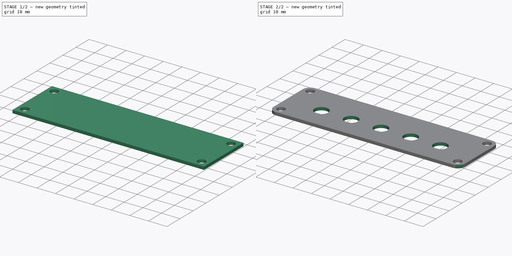
[diagram: build sequence overview — one tinted view per stage of 2, left to right]
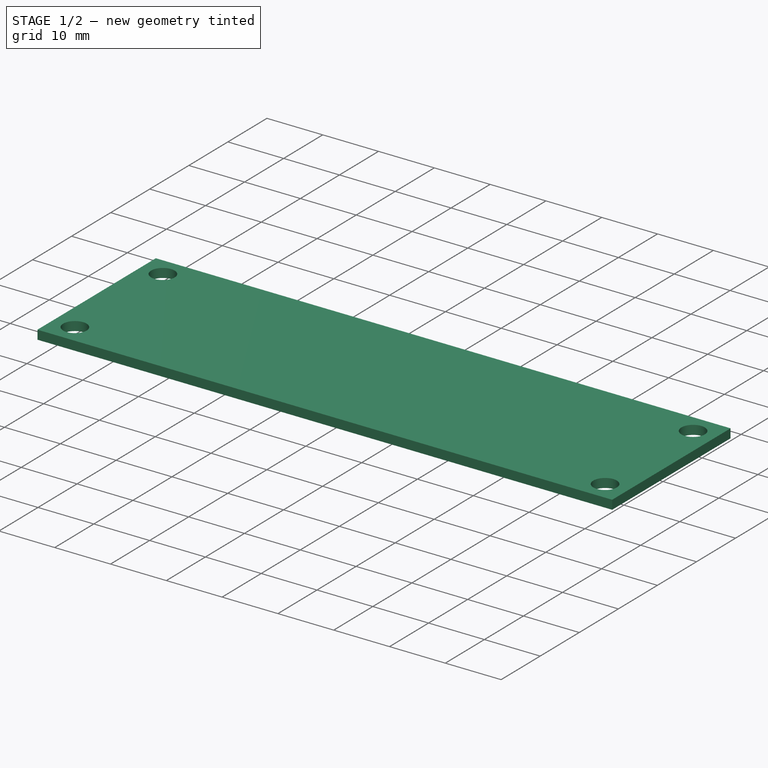
[diagram: stage 1 of 2 — iso view after this stage's code; geometry added in this stage tinted green]
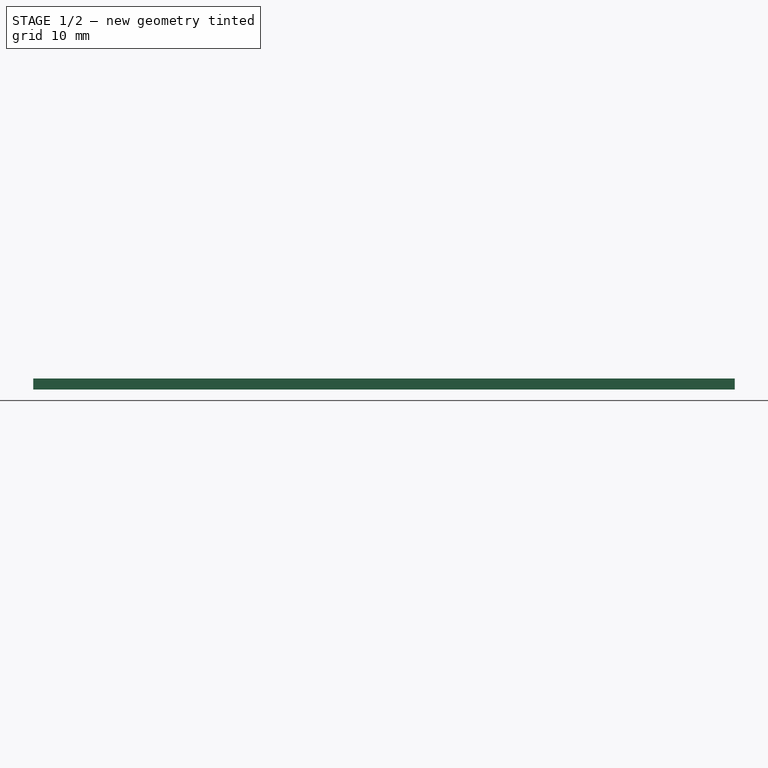
[diagram: stage 1 of 2 — front view after this stage's code; geometry added in this stage tinted green]
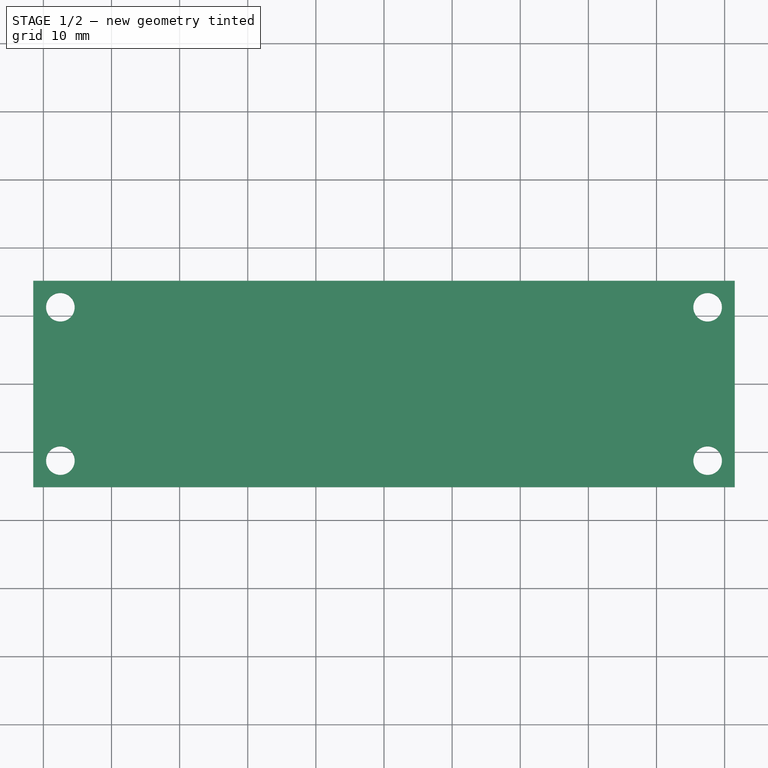
[diagram: stage 1 of 2 — top view after this stage's code; geometry added in this stage tinted green]
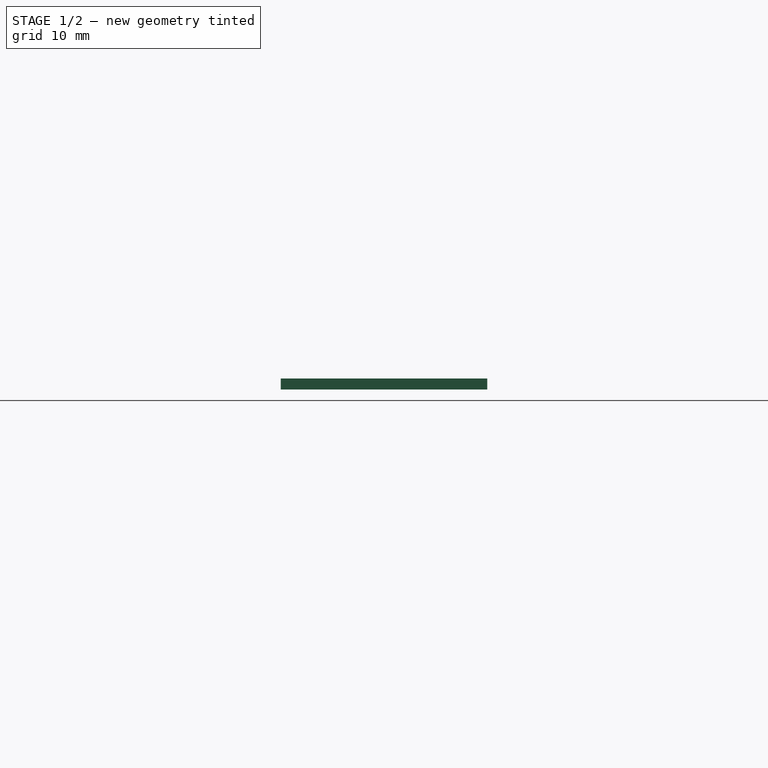
[diagram: stage 1 of 2 — right view after this stage's code; geometry added in this stage tinted green]
FCSTD DOCUMENT  (FreeCAD 0.16R4926 (Git))
Label: end_plate_front
License: All rights reserved
LicenseURL: http://en.wikipedia.org/wiki/All_rights_reserved
objects: Sketcher::SketchObject×3, PartDesign::Pocket×2, PartDesign::Pad×1, PartDesign::Fillet×1
note: 10 computed .brp shape members not serialized (recipe doc carries the construction recipe); baked Part::Feature solids carry a one-line shape summary decoded from their .brp

FEATURE [Sketcher::SketchObject] Sketch
  sketch-geometry (4):
    g0: LineSegment StartX=-51.5 StartY=15.15 StartZ=0 EndX=51.5 EndY=15.15 EndZ=0
    g1: LineSegment StartX=51.5 StartY=15.15 StartZ=0 EndX=51.5 EndY=-15.15 EndZ=0
    g2: LineSegment StartX=51.5 StartY=-15.15 StartZ=0 EndX=-51.5 EndY=-15.15 EndZ=0
    g3: LineSegment StartX=-51.5 StartY=-15.15 StartZ=0 EndX=-51.5 EndY=15.15 EndZ=0
  constraints (12):
    c: Coincident(g0,g1)
    c: Coincident(g1,g2)
    c: Coincident(g2,g3)
    c: Coincident(g3,g0)
    c: Horizontal(g0)
    c: Horizontal(g2)
    c: Vertical(g1)
    c: Vertical(g3)
    c: Symmetric(g1,g0,g-1)
    c: Symmetric(g0,g0,g-2)
    c: DistanceX(g2,g1) = 103
    c: DistanceY(g0,g2) = -30.3
FEATURE [PartDesign::Pad] Pad
  Length = 1.62
  Length2 = 100
  Sketch = -> Sketch
  Type = 0
FEATURE [Sketcher::SketchObject] Sketch001
  Placement = pos=(0,0,1.62) rot=(0,0,1;0rad)
  Support = -> Pad [Face6]
  sketch-geometry (4):
    g0: Circle CenterX=-47.51 CenterY=11.26 CenterZ=0 NormalX=0 NormalY=0 NormalZ=1 Radius=2.1
    g1: Circle CenterX=47.51 CenterY=11.26 CenterZ=0 NormalX=0 NormalY=0 NormalZ=1 Radius=2.1
    g2: Circle CenterX=-47.51 CenterY=-11.26 CenterZ=0 NormalX=0 NormalY=0 NormalZ=1 Radius=2.1
    g3: Circle CenterX=47.51 CenterY=-11.26 CenterZ=0 NormalX=0 NormalY=0 NormalZ=1 Radius=2.1
  constraints (9):
    c: Radius(g0) = 2.1
    c: Radius(g1) = 2.1
    c: Radius(g2) = 2.1
    c: Radius(g3) = 2.1
    c: Symmetric(g1,g0,g-2)
    c: Symmetric(g2,g3,g-2)
    c: Symmetric(g0,g2,g-1)
    c: DistanceY(g0,g2) = -22.52
    c: DistanceX(g2,g3) = 95.02
FEATURE [PartDesign::Pocket] Pocket
  Length = 5
  Sketch = -> Sketch001
  Type = 0
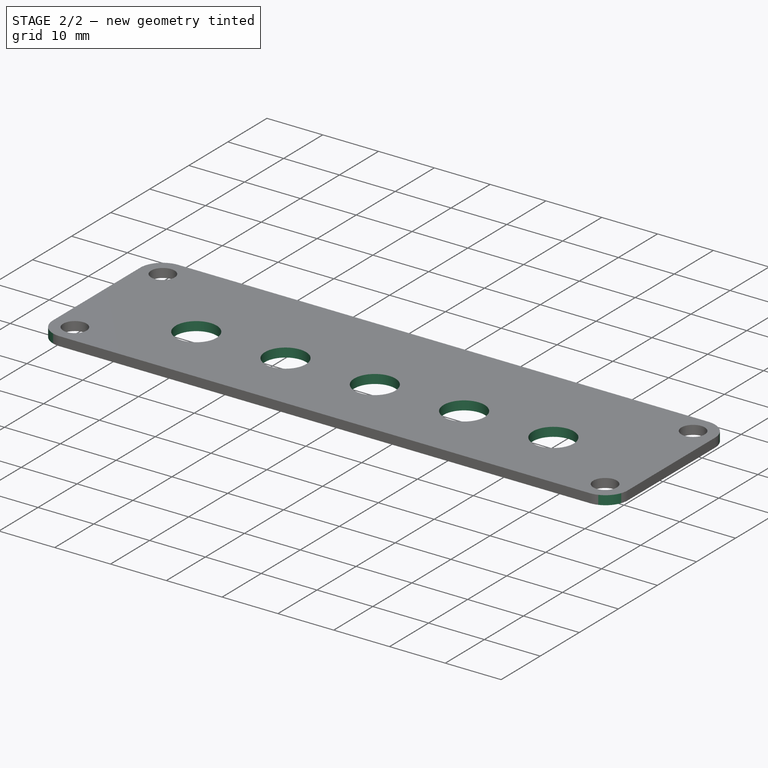
[diagram: stage 2 of 2 — iso view after this stage's code; geometry added in this stage tinted green]
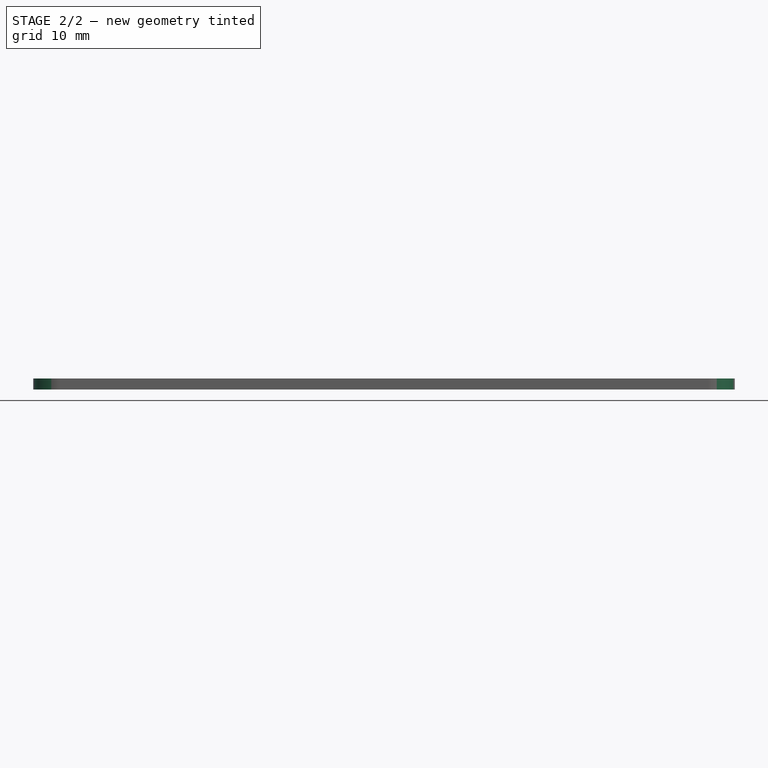
[diagram: stage 2 of 2 — front view after this stage's code; geometry added in this stage tinted green]
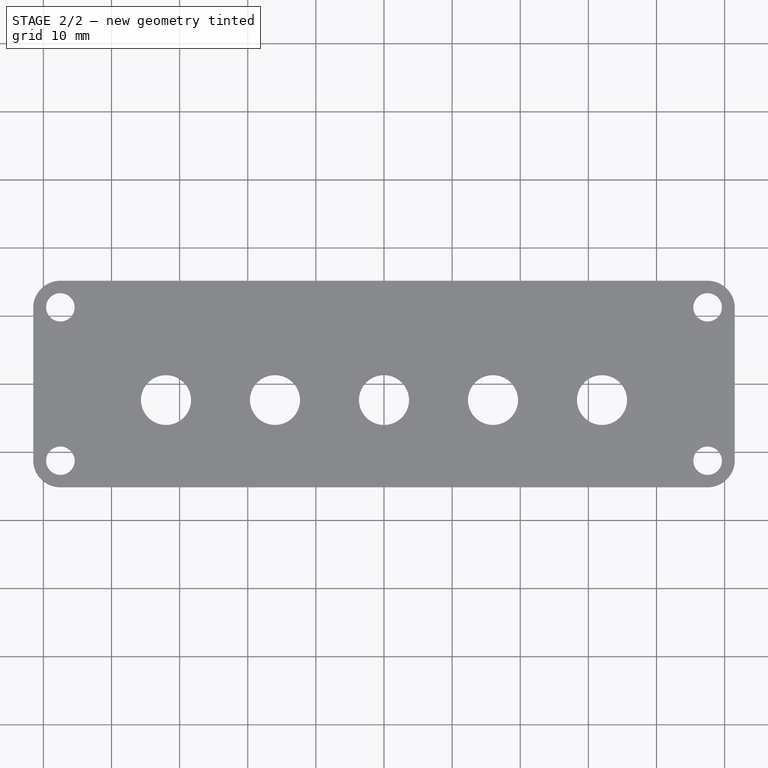
[diagram: stage 2 of 2 — top view after this stage's code; geometry added in this stage tinted green]
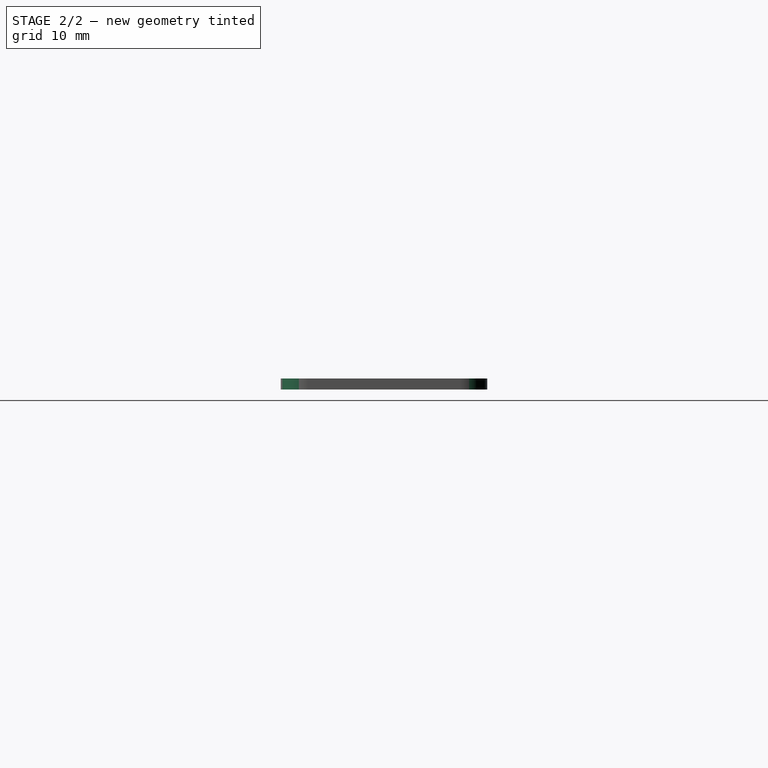
[diagram: stage 2 of 2 — right view after this stage's code; geometry added in this stage tinted green]
FEATURE [Sketcher::SketchObject] Sketch002
  Placement = pos=(0,0,1.62) rot=(0,0,1;0rad)
  Support = -> Pocket [Face5]
  sketch-geometry (6):
    g0: Circle CenterX=-32.004 CenterY=-2.35 CenterZ=0 NormalX=0 NormalY=0 NormalZ=1 Radius=3.675
    g1: Circle CenterX=-16.002 CenterY=-2.35 CenterZ=0 NormalX=0 NormalY=0 NormalZ=1 Radius=3.675
    g2: Circle CenterX=0 CenterY=-2.35 CenterZ=0 NormalX=0 NormalY=0 NormalZ=1 Radius=3.675
    g3: Circle CenterX=16.002 CenterY=-2.35 CenterZ=0 NormalX=0 NormalY=0 NormalZ=1 Radius=3.675
    g4: Circle CenterX=32.004 CenterY=-2.35 CenterZ=0 NormalX=0 NormalY=0 NormalZ=1 Radius=3.675
    g5: LineSegment [constr] StartX=-58.2565 StartY=-2.35 StartZ=0 EndX=66.901 EndY=-2.35 EndZ=0
  constraints (15):
    c: PointOnObject(g2,g-2)
    c: Radius(g0) = 3.675
    c: Radius(g1) = 3.675
    c: Radius(g2) = 3.675
    c: Radius(g3) = 3.675
    c: Radius(g4) = 3.675
    c: Symmetric(g1,g3,g-2)
    c: Symmetric(g0,g4,g-2)
    c: Horizontal(g5)
    c: PointOnObject(g0,g5)
    c: PointOnObject(g1,g5)
    c: PointOnObject(g2,g5)
    c: DistanceX(g1,g2) = 16.002
    c: DistanceX(g1,g0) = -16.002
    c: DistanceY(g-1,g5) = -2.35
FEATURE [PartDesign::Pocket] Pocket001
  Length = 5
  Sketch = -> Sketch002
  Type = 0
FEATURE [PartDesign::Fillet] Fillet
  Base = -> Pocket001 [Edge5,Edge1,Edge8,Edge2]
  Radius = 4
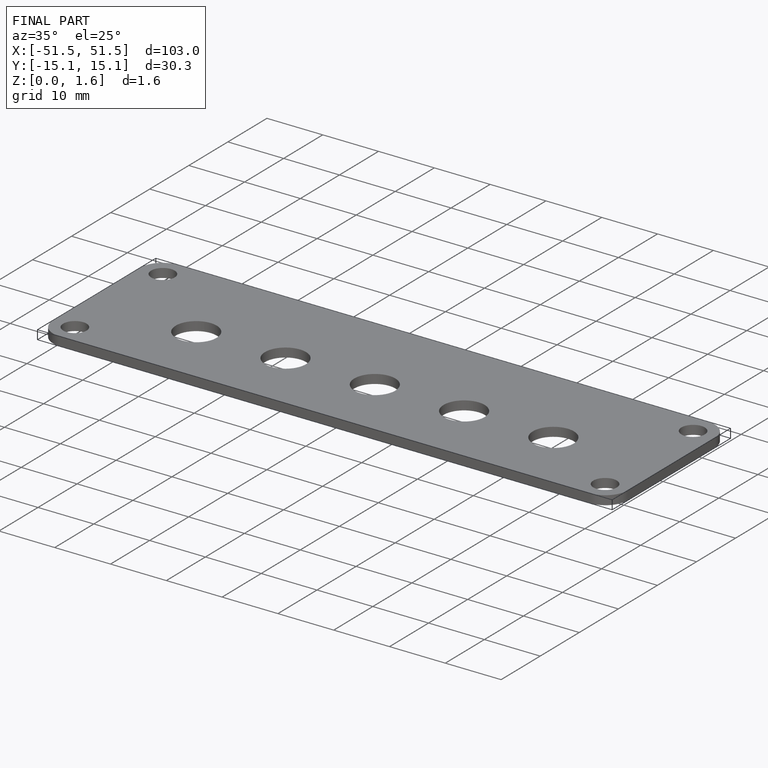
[diagram: finished part — iso view with bounding-box wireframe]
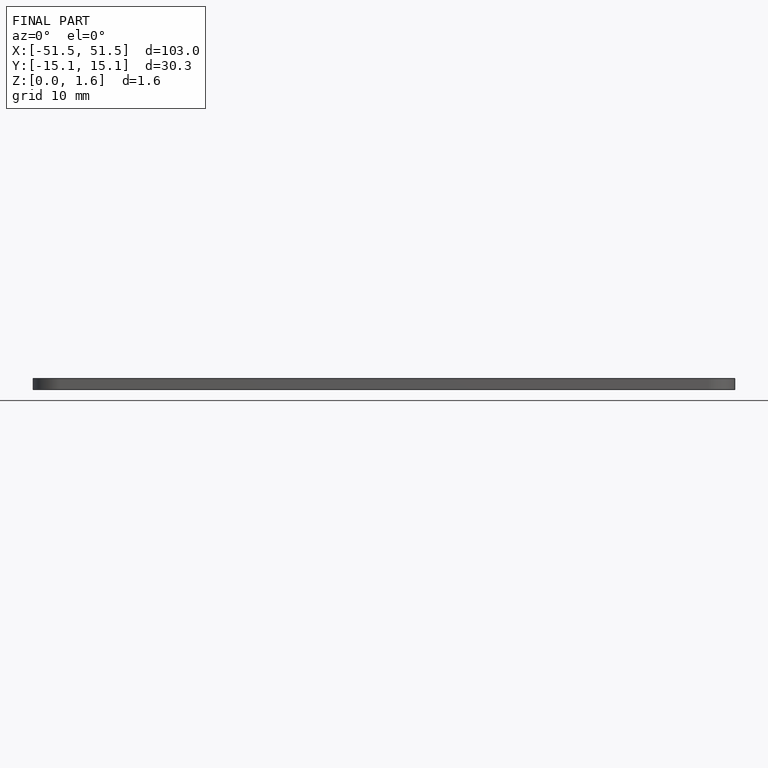
[diagram: finished part — front view with bounding-box wireframe]
